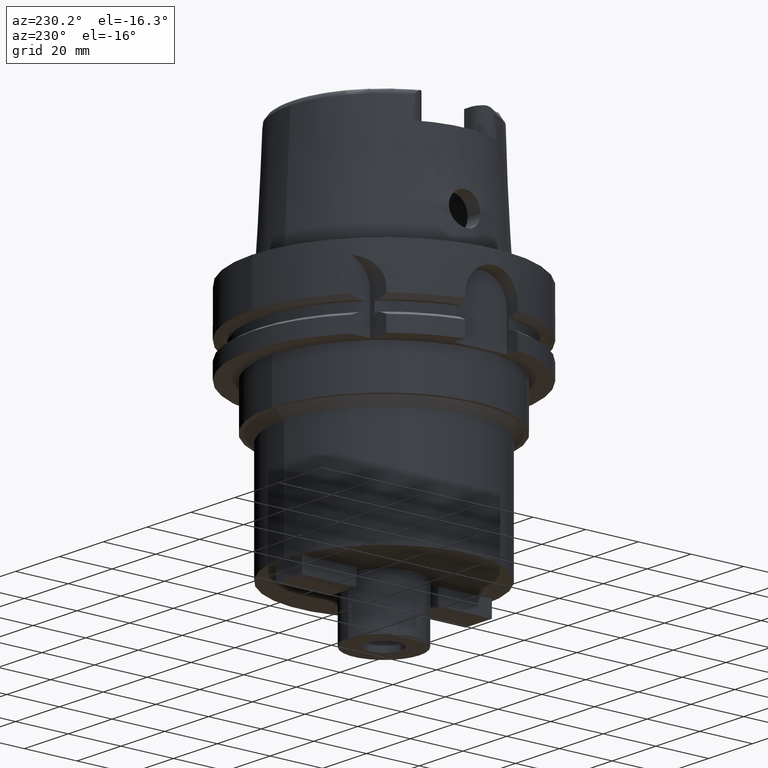
[diagram: clean part render]
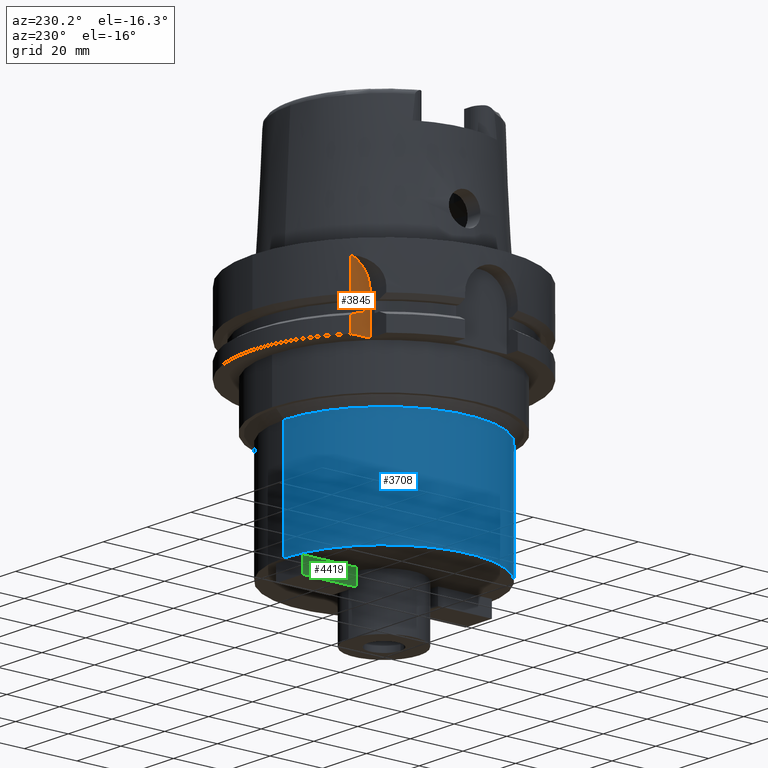
[diagram: same view with three faces highlighted in distinct colors, each labeled with its STEP entity id]
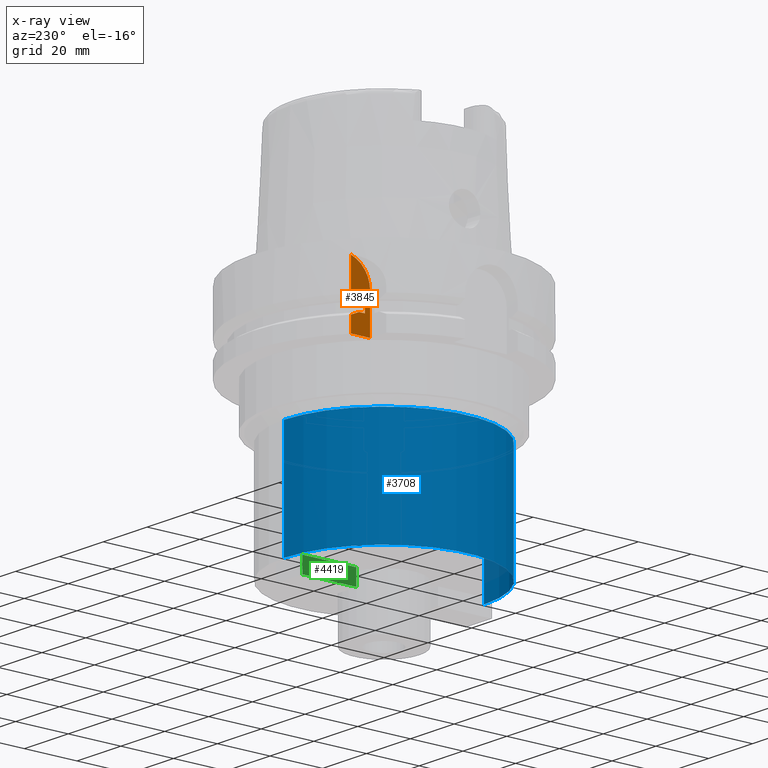
[diagram: x-ray of the same camera — body ghosted, the three highlighted faces saturated]
A machine part, auxiliary view with three faces highlighted in distinct colors.
The next image is the same camera in x-ray (body ghosted, the three faces saturated) — at least one of them is partly hidden behind the body in this view.
Their STEP definitions:

[orange] entity #3845 — the highlighted planar face has unit normal (1, 0, 0).
#1366=DIRECTION('',(4.798503851106E-14,1.E0,0.E0));
#1367=VECTOR('',#1366,7.329756630709E0);
#1368=CARTESIAN_POINT('',(-3.15E1,3.15E1,-2.9E1));
#1369=LINE('',#1368,#1367);
#1373=DIRECTION('',(-4.433903906541E-7,9.999999999999E-1,9.391792532212E-14));
#1374=VECTOR('',#1373,2.194015601002E0);
#1375=CARTESIAN_POINT('',(-3.15E1,3.352238058372E1,-1.8125E1));
#1376=LINE('',#1375,#1374);
#1380=CARTESIAN_POINT('',(-3.150000097281E1,3.571639618472E1,-1.8125E1));
#1381=CARTESIAN_POINT('',(-3.150000097281E1,3.606333863821E1,
-1.797477179943E1));
#1382=CARTESIAN_POINT('',(-3.150000002064E1,3.675646915239E1,
-1.767266204693E1));
#1383=CARTESIAN_POINT('',(-3.149999846856E1,3.779429574907E1,
-1.721518165955E1));
#1384=CARTESIAN_POINT('',(-3.150000355959E1,3.848477495946E1,
-1.690706900025E1));
#1385=CARTESIAN_POINT('',(-3.150000355959E1,3.882975374305E1,
-1.675239179145E1));
#1390=CARTESIAN_POINT('',(-3.15E1,4.15E1,-1.463689785921E1));
#1391=DIRECTION('',(1.E0,0.E0,0.E0));
#1392=DIRECTION('',(0.E0,-2.670243369290E-1,9.636897859206E-1));
#1393=AXIS2_PLACEMENT_3D('',#1390,#1391,#1392);
#1398=DIRECTION('',(6.188494047475E-7,5.020316378014E-7,-9.999999999997E-1));
#1399=VECTOR('',#1398,5.752391791881E0);
#1400=CARTESIAN_POINT('',(-3.150000355986E1,3.882975374283E1,
-2.324760820812E1));
#1401=LINE('',#1400,#1399);
#1563=DIRECTION('',(0.E0,0.E0,1.E0));
#1564=VECTOR('',#1563,1.436310214079E1);
#1565=CARTESIAN_POINT('',(-3.15E1,3.15E1,-2.9E1));
#1566=LINE('',#1565,#1564);
#1594=DIRECTION('',(-3.028823767049E-7,-2.457085509676E-7,-9.999999999999E-1));
#1595=VECTOR('',#1594,1.175239179145E1);
#1596=CARTESIAN_POINT('',(-3.15E1,3.882975663071E1,-5.000000000003E0));
#1597=LINE('',#1596,#1595);
#1714=DIRECTION('',(0.E0,0.E0,-1.E0));
#1715=VECTOR('',#1714,3.75E0);
#1716=CARTESIAN_POINT('',(-3.15E1,3.352238058372E1,-1.8125E1));
#1717=LINE('',#1716,#1715);
#1728=DIRECTION('',(-4.434271693799E-7,9.999999999999E-1,-9.229865077722E-14));
#1729=VECTOR('',#1728,2.194015600297E0);
#1730=CARTESIAN_POINT('',(-3.15E1,3.352238058372E1,-2.1875E1));
#1731=LINE('',#1730,#1729);
#1767=CARTESIAN_POINT('',(-3.150000097289E1,3.571639618402E1,-2.1875E1));
#1768=CARTESIAN_POINT('',(-3.150000097289E1,3.605789002737E1,
-2.202286891912E1));
#1769=CARTESIAN_POINT('',(-3.150000002063E1,3.674380017621E1,
-2.232173054124E1));
#1770=CARTESIAN_POINT('',(-3.149999846845E1,3.778158713267E1,
-2.277929841516E1));
#1771=CARTESIAN_POINT('',(-3.150000355986E1,3.847935690318E1,
-2.309050172011E1));
#1772=CARTESIAN_POINT('',(-3.150000355986E1,3.882975374283E1,
-2.324760820812E1));
#2658=CARTESIAN_POINT('',(-3.15E1,3.15E1,-2.9E1));
#2659=CARTESIAN_POINT('',(-3.15E1,3.882975663071E1,-2.9E1));
#2660=VERTEX_POINT('',#2658);
#2661=VERTEX_POINT('',#2659);
#2684=CARTESIAN_POINT('',(-3.150000355986E1,3.882975374283E1,
-2.324760820812E1));
#2685=VERTEX_POINT('',#2684);
#2686=VERTEX_POINT('',#1767);
#2687=CARTESIAN_POINT('',(-3.15E1,3.352238058372E1,-2.1875E1));
#2688=VERTEX_POINT('',#2687);
#2689=CARTESIAN_POINT('',(-3.15E1,3.352238058372E1,-1.8125E1));
#2690=VERTEX_POINT('',#2689);
#2691=CARTESIAN_POINT('',(-3.150000097281E1,3.571639618472E1,-1.8125E1));
#2692=VERTEX_POINT('',#2691);
#2693=VERTEX_POINT('',#1385);
#2694=CARTESIAN_POINT('',(-3.15E1,3.882975663071E1,-5.000000000003E0));
#2695=VERTEX_POINT('',#2694);
#2696=CARTESIAN_POINT('',(-3.15E1,3.15E1,-1.463689785921E1));
#2697=VERTEX_POINT('',#2696);
#3819=CARTESIAN_POINT('',(-3.15E1,0.E0,0.E0));
#3820=DIRECTION('',(1.E0,0.E0,0.E0));
#3821=DIRECTION('',(0.E0,0.E0,1.E0));
#3822=AXIS2_PLACEMENT_3D('',#3819,#3820,#3821);
#3823=PLANE('',#3822);
#3824=ORIENTED_EDGE('',*,*,#3786,.T.);
#3826=ORIENTED_EDGE('',*,*,#3825,.F.);
#3828=ORIENTED_EDGE('',*,*,#3827,.F.);
#3830=ORIENTED_EDGE('',*,*,#3829,.F.);
#3832=ORIENTED_EDGE('',*,*,#3831,.F.);
#3834=ORIENTED_EDGE('',*,*,#3833,.T.);
#3836=ORIENTED_EDGE('',*,*,#3835,.T.);
#3838=ORIENTED_EDGE('',*,*,#3837,.F.);
#3840=ORIENTED_EDGE('',*,*,#3839,.T.);
#3842=ORIENTED_EDGE('',*,*,#3841,.F.);
#3843=EDGE_LOOP('',(#3824,#3826,#3828,#3830,#3832,#3834,#3836,#3838,#3840,
#3842));
#3844=FACE_OUTER_BOUND('',#3843,.F.);
#1386=B_SPLINE_CURVE_WITH_KNOTS('',3,(#1380,#1381,#1382,#1383,#1384,#1385),
.UNSPECIFIED.,.F.,.F.,(4,1,1,4),(0.E0,3.333333333333E-1,6.666666666667E-1,1.E0),
.UNSPECIFIED.);
#1394=CIRCLE('',#1393,1.E1);
#1773=B_SPLINE_CURVE_WITH_KNOTS('',3,(#1767,#1768,#1769,#1770,#1771,#1772),
.UNSPECIFIED.,.F.,.F.,(4,1,1,4),(0.E0,3.333333333333E-1,6.666666666667E-1,1.E0),
.UNSPECIFIED.);
#3786=EDGE_CURVE('',#2660,#2661,#1369,.T.);
#3825=EDGE_CURVE('',#2685,#2661,#1401,.T.);
#3827=EDGE_CURVE('',#2686,#2685,#1773,.T.);
#3829=EDGE_CURVE('',#2688,#2686,#1731,.T.);
#3831=EDGE_CURVE('',#2690,#2688,#1717,.T.);
#3833=EDGE_CURVE('',#2690,#2692,#1376,.T.);
#3835=EDGE_CURVE('',#2692,#2693,#1386,.T.);
#3837=EDGE_CURVE('',#2695,#2693,#1597,.T.);
#3839=EDGE_CURVE('',#2695,#2697,#1394,.T.);
#3841=EDGE_CURVE('',#2660,#2697,#1566,.T.);
#3845=ADVANCED_FACE('',(#3844),#3823,.F.);

[blue] entity #3708 — the highlighted cylindrical surface (partial cylindrical patch) has radius 38 mm, axis along (0, 0, 1).
#1147=CARTESIAN_POINT('',(0.E0,0.E0,-9.E1));
#1148=DIRECTION('',(0.E0,0.E0,1.E0));
#1149=DIRECTION('',(0.E0,1.E0,0.E0));
#1150=AXIS2_PLACEMENT_3D('',#1147,#1148,#1149);
#1199=DIRECTION('',(0.E0,0.E0,-1.E0));
#1200=VECTOR('',#1199,4.2E1);
#1201=CARTESIAN_POINT('',(0.E0,3.8E1,-4.8E1));
#1202=LINE('',#1201,#1200);
#1206=DIRECTION('',(0.E0,0.E0,-1.E0));
#1207=VECTOR('',#1206,4.2E1);
#1208=CARTESIAN_POINT('',(0.E0,-3.8E1,-4.8E1));
#1209=LINE('',#1208,#1207);
#1220=CARTESIAN_POINT('',(0.E0,0.E0,-4.8E1));
#1221=DIRECTION('',(0.E0,0.E0,-1.E0));
#1222=DIRECTION('',(0.E0,-1.E0,0.E0));
#1223=AXIS2_PLACEMENT_3D('',#1220,#1221,#1222);
#2622=CARTESIAN_POINT('',(0.E0,-3.8E1,-9.E1));
#2623=CARTESIAN_POINT('',(0.E0,3.8E1,-9.E1));
#2624=VERTEX_POINT('',#2622);
#2625=VERTEX_POINT('',#2623);
#2642=CARTESIAN_POINT('',(0.E0,3.8E1,-4.8E1));
#2643=VERTEX_POINT('',#2642);
#2644=CARTESIAN_POINT('',(0.E0,-3.8E1,-4.8E1));
#2645=VERTEX_POINT('',#2644);
#3696=CARTESIAN_POINT('',(0.E0,0.E0,-1.18E2));
#3697=DIRECTION('',(0.E0,0.E0,1.E0));
#3698=DIRECTION('',(0.E0,1.E0,0.E0));
#3699=AXIS2_PLACEMENT_3D('',#3696,#3697,#3698);
#3700=CYLINDRICAL_SURFACE('',#3699,3.8E1);
#3701=ORIENTED_EDGE('',*,*,#3686,.F.);
#3703=ORIENTED_EDGE('',*,*,#3702,.F.);
#3704=ORIENTED_EDGE('',*,*,#3689,.T.);
#3705=ORIENTED_EDGE('',*,*,#3652,.F.);
#3706=EDGE_LOOP('',(#3701,#3703,#3704,#3705));
#3707=FACE_OUTER_BOUND('',#3706,.F.);
#1151=CIRCLE('',#1150,3.8E1);
#1224=CIRCLE('',#1223,3.8E1);
#3652=EDGE_CURVE('',#2625,#2624,#1151,.T.);
#3686=EDGE_CURVE('',#2643,#2625,#1202,.T.);
#3689=EDGE_CURVE('',#2645,#2624,#1209,.T.);
#3702=EDGE_CURVE('',#2645,#2643,#1224,.T.);
#3708=ADVANCED_FACE('',(#3707),#3700,.T.);

[green] entity #4419 — the highlighted planar face has unit normal (1, 0, 0).
#1171=DIRECTION('',(0.E0,1.E0,0.E0));
#1172=VECTOR('',#1171,2.05E1);
#1173=CARTESIAN_POINT('',(-6.E0,1.55E1,-9.E1));
#1174=LINE('',#1173,#1172);
#2232=DIRECTION('',(0.E0,0.E0,1.E0));
#2233=VECTOR('',#2232,6.E0);
#2234=CARTESIAN_POINT('',(-6.E0,1.55E1,-9.6E1));
#2235=LINE('',#2234,#2233);
#2274=DIRECTION('',(0.E0,0.E0,-1.E0));
#2275=VECTOR('',#2274,6.E0);
#2276=CARTESIAN_POINT('',(-6.E0,3.6E1,-9.E1));
#2277=LINE('',#2276,#2275);
#2281=DIRECTION('',(0.E0,-1.E0,0.E0));
#2282=VECTOR('',#2281,2.05E1);
#2283=CARTESIAN_POINT('',(-6.E0,3.6E1,-9.6E1));
#2284=LINE('',#2283,#2282);
#2626=CARTESIAN_POINT('',(-6.E0,1.55E1,-9.E1));
#2627=CARTESIAN_POINT('',(-6.E0,3.6E1,-9.E1));
#2628=VERTEX_POINT('',#2626);
#2629=VERTEX_POINT('',#2627);
#2806=CARTESIAN_POINT('',(-6.E0,1.55E1,-9.6E1));
#2807=VERTEX_POINT('',#2806);
#2808=CARTESIAN_POINT('',(-6.E0,3.6E1,-9.6E1));
#2809=VERTEX_POINT('',#2808);
#4405=CARTESIAN_POINT('',(-6.E0,0.E0,0.E0));
#4406=DIRECTION('',(1.E0,0.E0,0.E0));
#4407=DIRECTION('',(0.E0,0.E0,1.E0));
#4408=AXIS2_PLACEMENT_3D('',#4405,#4406,#4407);
#4409=PLANE('',#4408);
#4410=ORIENTED_EDGE('',*,*,#3660,.F.);
#4412=ORIENTED_EDGE('',*,*,#4411,.F.);
#4414=ORIENTED_EDGE('',*,*,#4413,.F.);
#4416=ORIENTED_EDGE('',*,*,#4415,.F.);
#4417=EDGE_LOOP('',(#4410,#4412,#4414,#4416));
#4418=FACE_OUTER_BOUND('',#4417,.F.);
#3660=EDGE_CURVE('',#2628,#2629,#1174,.T.);
#4411=EDGE_CURVE('',#2807,#2628,#2235,.T.);
#4413=EDGE_CURVE('',#2809,#2807,#2284,.T.);
#4415=EDGE_CURVE('',#2629,#2809,#2277,.T.);
#4419=ADVANCED_FACE('',(#4418),#4409,.F.);